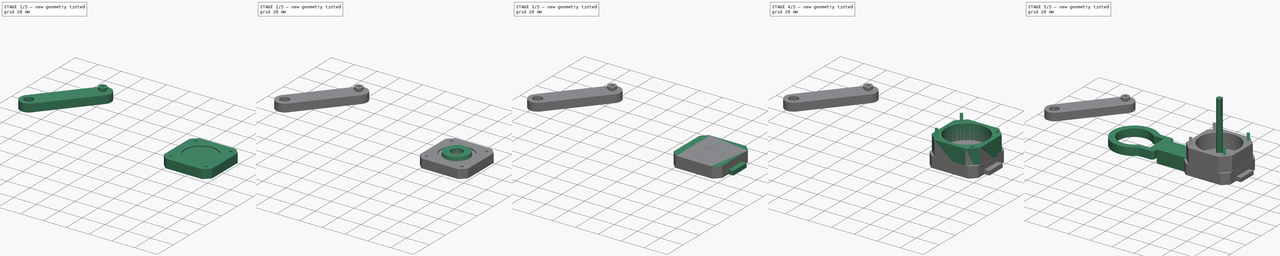
[diagram: build sequence overview — one tinted view per stage of 5, left to right]
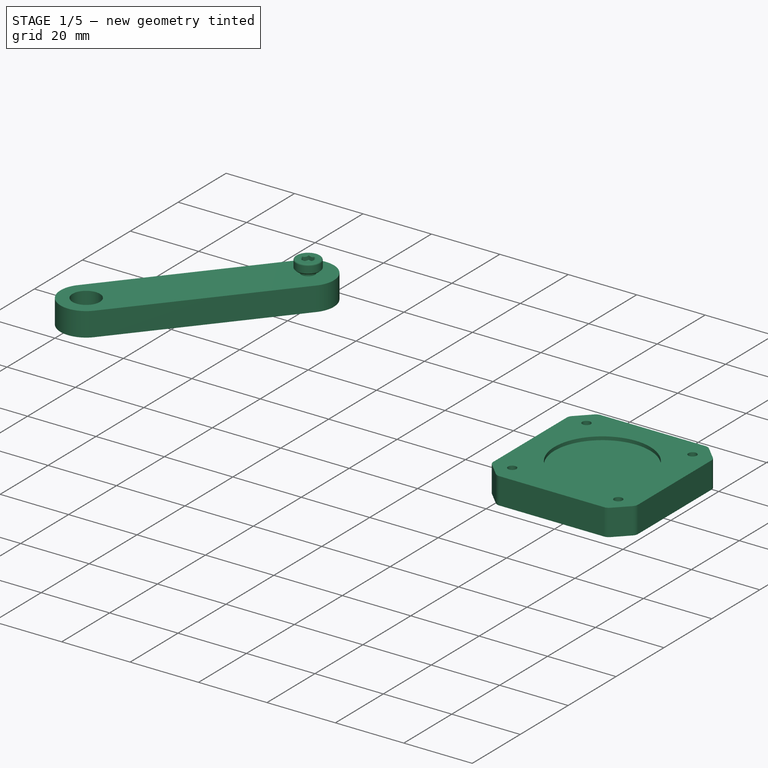
[diagram: stage 1 of 5 — iso view after this stage's code; geometry added in this stage tinted green]
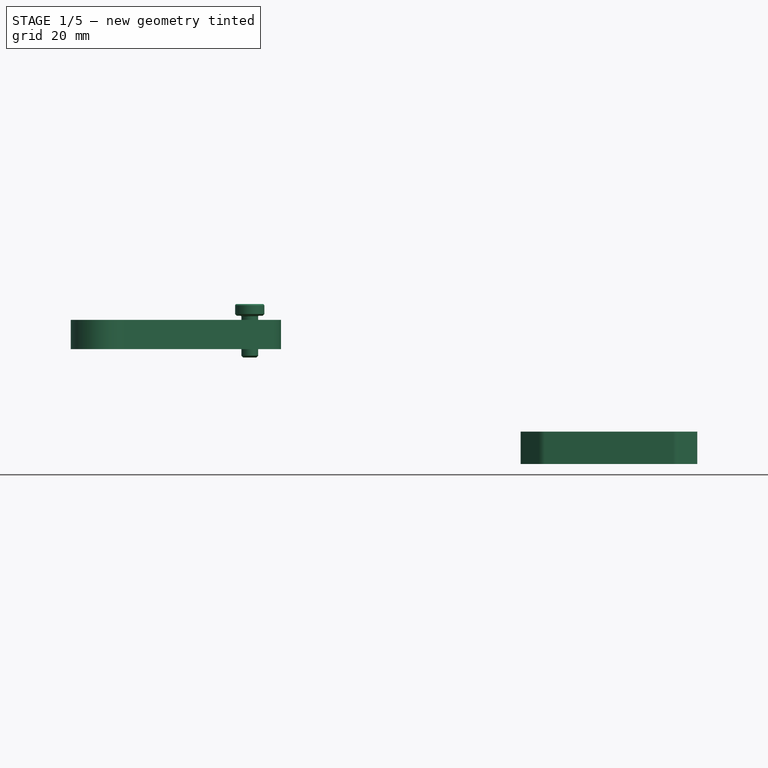
[diagram: stage 1 of 5 — front view after this stage's code; geometry added in this stage tinted green]
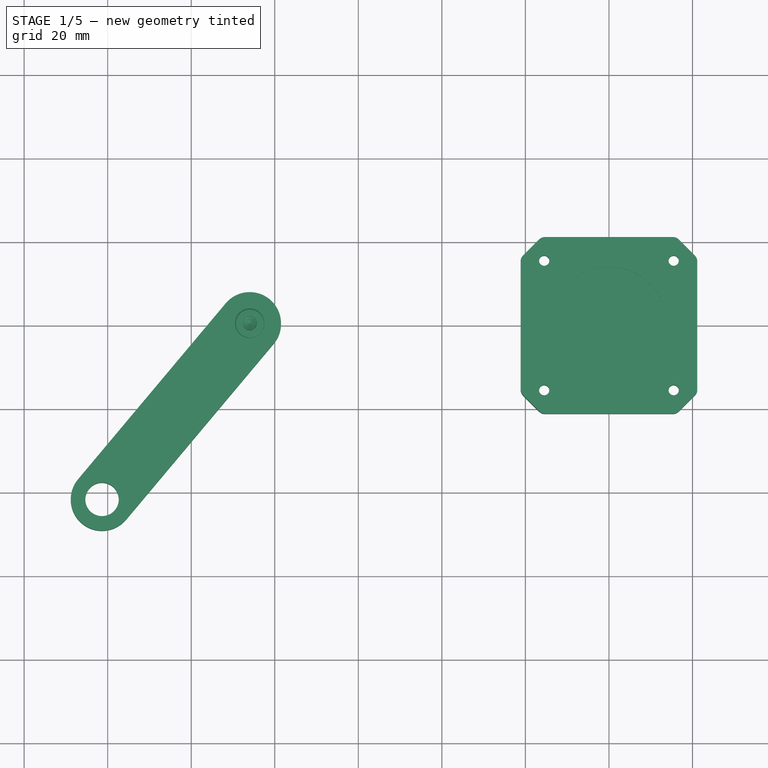
[diagram: stage 1 of 5 — top view after this stage's code; geometry added in this stage tinted green]
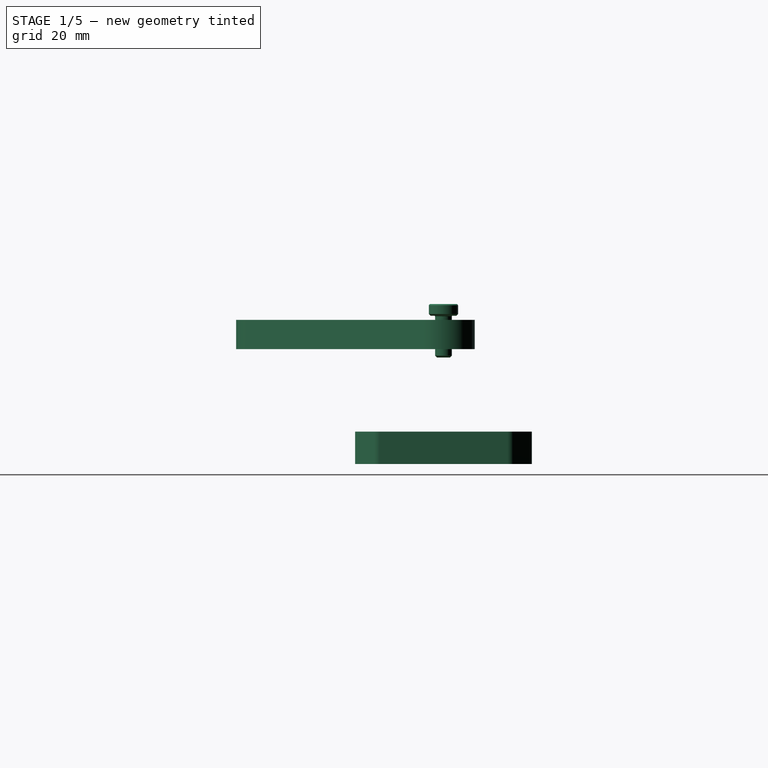
[diagram: stage 1 of 5 — right view after this stage's code; geometry added in this stage tinted green]
FCSTD DOCUMENT  (FreeCAD 0.19R24291 (Git))
Label: robotic-arm
License: All rights reserved
LicenseURL: http://en.wikipedia.org/wiki/All_rights_reserved
objects: Sketcher::SketchObject×26, PartDesign::Pocket×13, PartDesign::Pad×12, App::Part×10, PartDesign::Body×9, Part::FeaturePython×5, PartDesign::Chamfer×4, Part::Feature×2, PartDesign::Fillet×2, PartDesign::Draft×1, PartDesign::Hole×1, PartDesign::LinearPattern×1, Spreadsheet::Sheet×1
note: 109 computed .brp shape members not serialized (recipe doc carries the construction recipe); baked Part::Feature solids carry a one-line shape summary decoded from their .brp

FEATURE [Sketcher::SketchObject] Sketch006
  FullyConstrained = false
  MapMode = 5
  Support = -> [XY_Plane007]
  sketch-geometry (4):
    g0: LineSegment StartX=-21.15 StartY=21.15 StartZ=0 EndX=21.15 EndY=21.15 EndZ=0
    g1: LineSegment StartX=21.15 StartY=21.15 StartZ=0 EndX=21.15 EndY=-21.15 EndZ=0
    g2: LineSegment StartX=21.15 StartY=-21.15 StartZ=0 EndX=-21.15 EndY=-21.15 EndZ=0
    g3: LineSegment StartX=-21.15 StartY=-21.15 StartZ=0 EndX=-21.15 EndY=21.15 EndZ=0
  constraints (11):
    c: Coincident(g0,g1)
    c: Coincident(g1,g2)
    c: Coincident(g2,g3)
    c: Coincident(g3,g0)
    c: Horizontal(g0)
    c: Horizontal(g2)
    c: Vertical(g1)
    c: Vertical(g3)
    c: Symmetric(g0,g1,g-1)
    c: DistanceX(g0,g0) = 42.3
    c: Equal(g0,g3)
FEATURE [PartDesign::Pad] Pad005
  AllowMultiFace = false
  Direction = (1,1,1)
  Length = 7.75
  Length2 = 100
  Profile = -> Sketch006
  Refine = true
  Type = 0
FEATURE [PartDesign::Chamfer] Chamfer002
  Angle = 45
  Base = -> Pad005 [Edge8,Edge5,Edge2,Edge1]
  BaseFeature = -> Pad005
  ChamferType = 0
  FlipDirection = false
  Size = 5
  Size2 = 1
  SupportTransform = false
FEATURE [PartDesign::Fillet] Fillet001
  Base = -> Chamfer002 [Edge22,Edge24,Edge23,Edge21,Edge12,Edge2,Edge3,Edge14]
  BaseFeature = -> Chamfer002
  Radius = 2
  SupportTransform = false
FEATURE [PartDesign::Body] Body005  label="Rotor"
  Group = -> [Sketch010,Pad006,Sketch011,Pocket005,Chamfer003]
  Origin = -> Origin008
  Placement = pos=(0,0,2) rot=(0,0,1;0rad)
  Tip = -> Chamfer003
FEATURE [Sketcher::SketchObject] Sketch012
  FullyConstrained = false
  MapMode = 5
  Placement = pos=(0,0,22.75) rot=(0,0,1;0rad)
  Support = -> [Pocket001]
  sketch-geometry (1):
    g0: Circle CenterX=0 CenterY=0 CenterZ=0 NormalX=0 NormalY=0 NormalZ=1 AngleXU=0 Radius=18
  constraints (2):
    c: Coincident(g0,g-1)
    c: Radius(g0) = 18
FEATURE [Sketcher::SketchObject] Sketch013
  FullyConstrained = false
  MapMode = 5
  Placement = pos=(0,0,7.75) rot=(0,0,1;0rad)
  Support = -> [Fillet001]
  sketch-geometry (8):
    g0: LineSegment StartX=-15.5 StartY=15.5 StartZ=0 EndX=15.5 EndY=15.5 EndZ=0
    g1: LineSegment StartX=15.5 StartY=15.5 StartZ=0 EndX=15.5 EndY=-15.5 EndZ=0
    g2: LineSegment StartX=15.5 StartY=-15.5 StartZ=0 EndX=-15.5 EndY=-15.5 EndZ=0
    g3: LineSegment StartX=-15.5 StartY=-15.5 StartZ=0 EndX=-15.5 EndY=15.5 EndZ=0
    g4: Circle CenterX=-15.5 CenterY=15.5 CenterZ=0 NormalX=0 NormalY=0 NormalZ=1 AngleXU=0 Radius=1.225
    g5: Circle CenterX=15.5 CenterY=15.5 CenterZ=0 NormalX=0 NormalY=0 NormalZ=1 AngleXU=0 Radius=1.225
    g6: Circle CenterX=15.5 CenterY=-15.5 CenterZ=0 NormalX=0 NormalY=0 NormalZ=1 AngleXU=0 Radius=1.225
    g7: Circle CenterX=-15.5 CenterY=-15.5 CenterZ=0 NormalX=0 NormalY=0 NormalZ=1 AngleXU=0 Radius=1.225
  constraints (19):
    c: Coincident(g0,g1)
    c: Coincident(g1,g2)
    c: Coincident(g2,g3)
    c: Coincident(g3,g0)
    c: Horizontal(g0)
    c: Horizontal(g2)
    c: Vertical(g1)
    c: Vertical(g3)
    c: Equal(g0,g3)
    c: Symmetric(g0,g1,g-1)
    c: DistanceX(g0,g0) = 31
    c: Coincident(g4,g0)
    c: Coincident(g7,g2)
    c: Coincident(g0,g5)
    c: Coincident(g1,g6)
    c: Equal(g7,g4)
    c: Equal(g4,g5)
    c: Equal(g5,g6)
    c: Radius(g4) = 1.225
FEATURE [PartDesign::Pocket] Pocket002
  AllowMultiFace = false
  BaseFeature = -> Fillet001
  Length = 5
  Length2 = 100
  Profile = -> Sketch013
  Refine = true
  Type = 1
FEATURE [Sketcher::SketchObject] Sketch014
  FullyConstrained = false
  MapMode = 5
  Placement = pos=(0,0,7.75) rot=(0,0,1;0rad)
  Support = -> [Pocket002]
  sketch-geometry (1):
    g0: Circle CenterX=0 CenterY=0 CenterZ=0 NormalX=0 NormalY=0 NormalZ=1 AngleXU=0 Radius=14
  constraints (2):
    c: Coincident(g0,g-1)
    c: Radius(g0) = 14
FEATURE [PartDesign::Pocket] Pocket003
  AllowMultiFace = false
  BaseFeature = -> Pocket002
  Length = 1
  Length2 = 100
  Profile = -> Sketch014
  Refine = true
  Type = 0
FEATURE [PartDesign::Body] Body004  label="Aluminum front001"
  Group = -> [Sketch006,Pad005,Chamfer002,Fillet001,Sketch013,Pocket002,Sketch014,Pocket003,Sketch015,Pad007,Draft,Sketch009,Pocket004,Sketch023,Pocket011]
  Origin = -> Origin007
  Placement = pos=(0,0,32.35) rot=(0,0,1;0rad)
  Tip = -> Pocket011
FEATURE [App::Part] Part005  label="Aluminum front"
  Group = -> [Body004]
  Origin = -> Origin011
FEATURE [App::Part] Part002  label="Nema 17"
  Group = -> [Part003,Part004,Part005,Part006,Part007,Part008]
  Origin = -> Origin004
  Placement = pos=(0,0,-50) rot=(0,0,1;3.14159rad)
FEATURE [Spreadsheet::Sheet] Spreadsheet
  cells = A1=variable; B1=value; A2=l1_arm_length; B2(l1_arm_length)=78; A3=l1_thicc; B3(l1_thicc)=7; A4=l2_thicc; B4(l2_thicc)==l1_thicc; A5=l2_arm_length; B5(l2_arm_length)=55; A6=l2_start_offset_from_origin; B6(l2_start_offset_from_origin)==l1_arm_length + 8; A7=l2_angle; B7(l2_angle)=130; A8=l2_offset_height; B8(l2_offset_height)==l1_thicc + 20.5
FEATURE [Sketcher::SketchObject] Sketch024
  AttachmentOffset = pos=(0,0,27.5) rot=(0,0,1;0rad)
  FullyConstrained = true
  MapMode = 5
  Placement = pos=(0,0,27.5) rot=(0,0,1;0rad)
  Support = -> [XY_Plane002]
  expr: Constraints[11] = Spreadsheet.l2_arm_length
  expr: .AttachmentOffset.Base.z = Spreadsheet.l2_offset_height
  expr: Constraints[12] = Spreadsheet.l2_angle
  expr: Constraints[1] = Spreadsheet.l2_start_offset_from_origin
  sketch-geometry (5):
    g0: GeomPoint X=-86 Y=0 Z=0
    g1: LineSegment StartX=-91.7453 StartY=4.82091 StartZ=0 EndX=-127.099 EndY=-37.3116 EndZ=0
    g2: LineSegment StartX=-80.2547 StartY=-4.82091 StartZ=0 EndX=-115.608 EndY=-46.9534 EndZ=0
    g3: ArcOfCircle CenterX=-86 CenterY=0 CenterZ=0 NormalX=0 NormalY=0 NormalZ=1 AngleXU=0 Radius=7.5 StartAngle=5.58505 EndAngle=8.72665
    g4: ArcOfCircle CenterX=-121.353 CenterY=-42.1324 CenterZ=0 NormalX=0 NormalY=0 NormalZ=1 AngleXU=0 Radius=7.5 StartAngle=2.44346 EndAngle=5.58505
  constraints (13):
    c: PointOnObject(g0,g-1)
    c: DistanceX(g0,g-1) = 86
    c: Equal(g1,g2)
    c: Parallel(g1,g2)
    c: Coincident(g3,g0)
    c: Tangent(g3,g2) = 1.5708
    c: Tangent(g3,g1) = -1.5708
    c: Diameter(g3) = 15
    c: Coincident(g4,g1)
    c: Coincident(g4,g2)
    c: Diameter(g4) = 15
    c: Distance(g4,g3) = 55
    c: Angle(g2,g-1) = 2.26893
FEATURE [PartDesign::Pad] Pad011
  Direction = (1,1,1)
  Length = 7
  Length2 = 100
  Profile = -> Sketch024
  Type = 0
  expr: Length = Spreadsheet.l2_thicc
FEATURE [Sketcher::SketchObject] Sketch025
  AttachmentOffset = pos=(0,0,27.5) rot=(0,0,1;0rad)
  FullyConstrained = true
  MapMode = 5
  Placement = pos=(0,0,27.5) rot=(0,0,1;0rad)
  Support = -> [XY_Plane002]
  expr: .AttachmentOffset.Base.z = Spreadsheet.l2_offset_height
  expr: Constraints[7] = Spreadsheet.l2_angle
  expr: Constraints[4] = Spreadsheet.l2_arm_length
  expr: Constraints[1] = Spreadsheet.l2_start_offset_from_origin
  sketch-geometry (5):
    g0: GeomPoint X=-86 Y=0 Z=0
    g1: Circle CenterX=-86 CenterY=0 CenterZ=0 NormalX=0 NormalY=0 NormalZ=1 AngleXU=0 Radius=2
    g2: GeomPoint X=-121.353 Y=-42.1324 Z=0
    g3: LineSegment StartX=-86 StartY=0 StartZ=0 EndX=-121.353 EndY=-42.1324 EndZ=0
    g4: Circle CenterX=-121.353 CenterY=-42.1324 CenterZ=0 NormalX=0 NormalY=0 NormalZ=1 AngleXU=0 Radius=4
  constraints (10):
    c: PointOnObject(g0,g-1)
    c: DistanceX(g0,g-1) = 86
    c: Coincident(g1,g0)
    c: Diameter(g1) = 4
    c: Distance(g2,g1) = 55
    c: Coincident(g3,g1)
    c: Coincident(g3,g2)
    c: Angle(g3,g-1) = 2.26893
    c: Coincident(g4,g2)
    c: Diameter(g4) = 8
FEATURE [PartDesign::Pocket] Pocket012
  BaseFeature = -> Pad011
  Length = 5
  Length2 = 100
  Profile = -> Sketch025
  Reversed = true
  Type = 1
FEATURE [PartDesign::Body] Body001  label="l2"
  Group = -> [Sketch024,Pad011,Sketch025,Pocket012]
  Origin = -> Origin002
  Tip = -> Pocket012
FEATURE [App::Part] Part  label="arm-body"
  Group = -> [Body,Body001]
  Origin = -> Origin
FEATURE [Part::Feature] Part__Feature  label="motor-hex-coupler-hub-6mm"
  Placement = pos=(-86,0,27) rot=(0,1,0;3.14159rad)
  shape: bbox 14 x 12.12 x 18.5 mm, 21 faces (baked)
FEATURE [App::Part] Part009  label="28BYJ-48_coupler"
  Group = -> [Part__Feature]
  Origin = -> Origin018
FEATURE [Part::FeaturePython] Screw004  label="M4x10-Screw"  # Fasteners workbench fastener (typed FeaturePython)
  Placement = pos=(-86,0,35.5) rot=(0,0,1;0rad)
  diameter = 1
  invert = false
  length = 0
  lengthCustom = 10
  matchOuter = false
  offset = 0
  thread = false
  type = 13
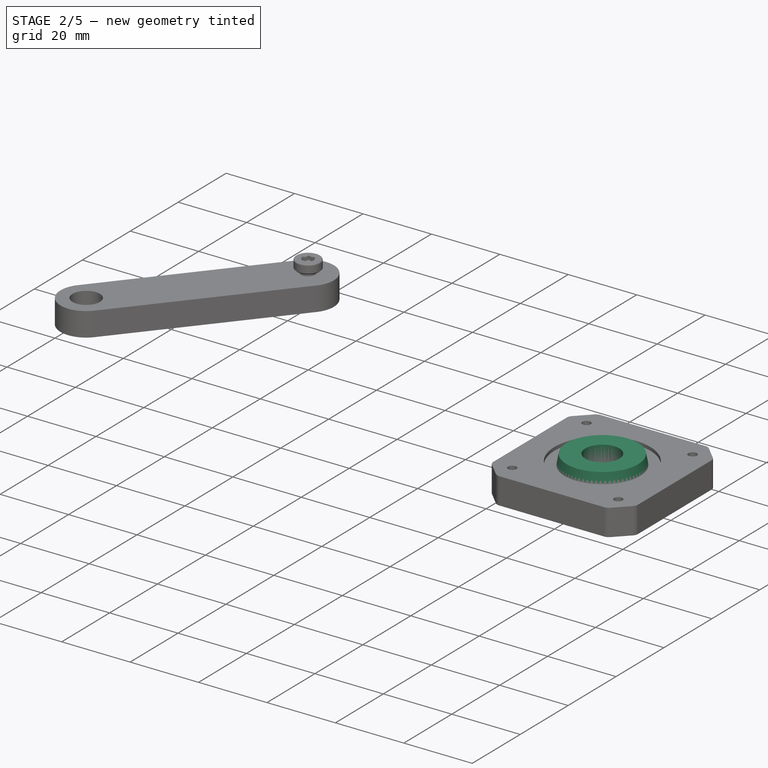
[diagram: stage 2 of 5 — iso view after this stage's code; geometry added in this stage tinted green]
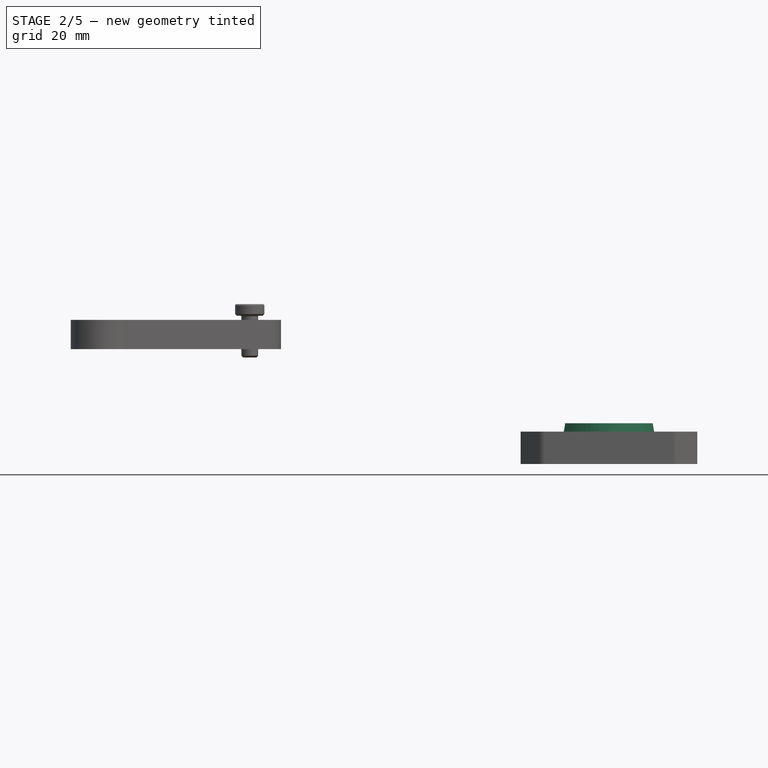
[diagram: stage 2 of 5 — front view after this stage's code; geometry added in this stage tinted green]
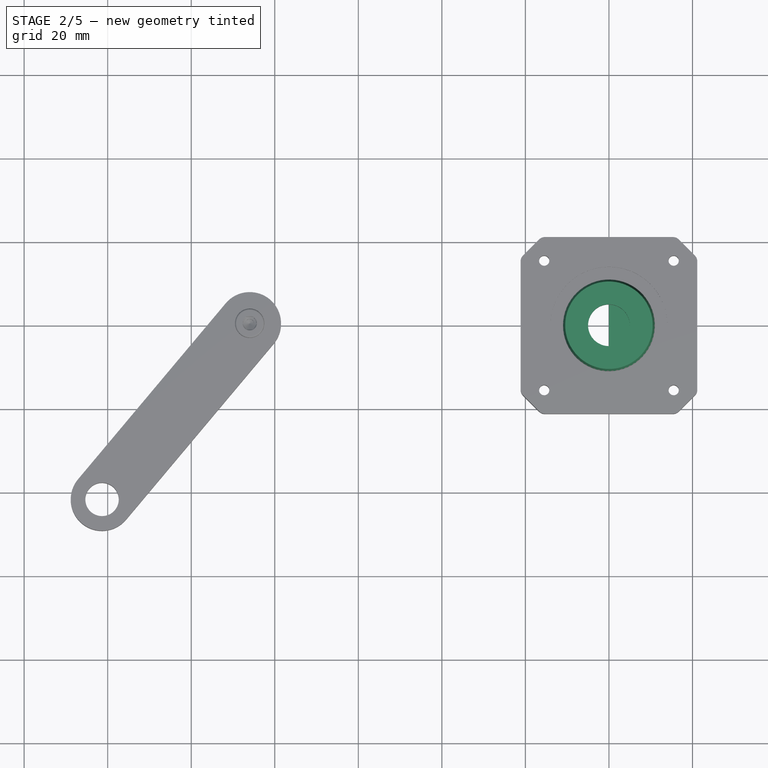
[diagram: stage 2 of 5 — top view after this stage's code; geometry added in this stage tinted green]
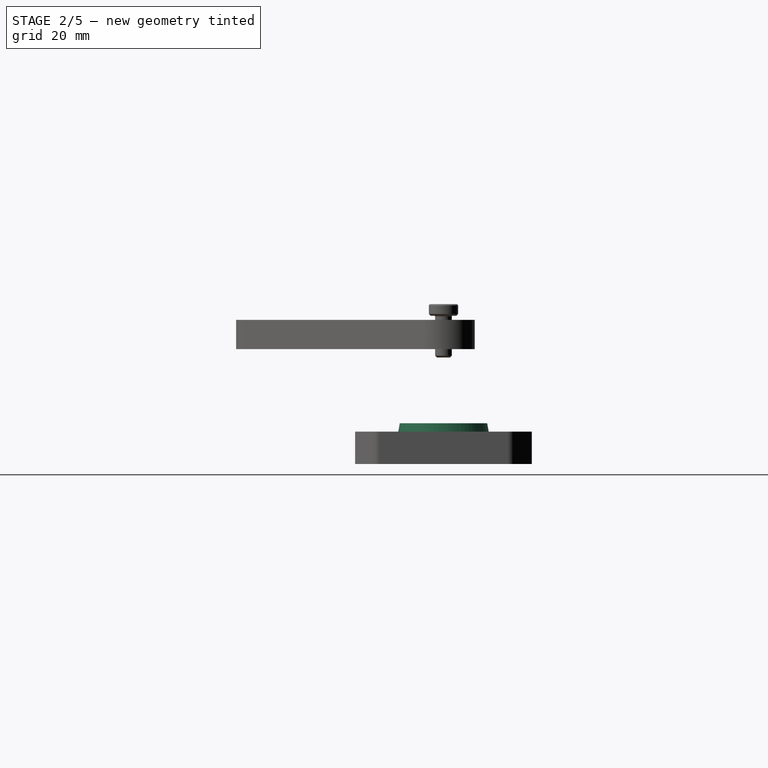
[diagram: stage 2 of 5 — right view after this stage's code; geometry added in this stage tinted green]
FEATURE [Sketcher::SketchObject] Sketch015
  FullyConstrained = false
  MapMode = 5
  Placement = pos=(0,0,6.75) rot=(0,0,1;0rad)
  Support = -> [Pocket003]
  sketch-geometry (1):
    g0: Circle CenterX=0 CenterY=0 CenterZ=0 NormalX=0 NormalY=0 NormalZ=1 AngleXU=0 Radius=11
  constraints (2):
    c: Coincident(g0,g-1)
    c: Radius(g0) = 11
FEATURE [PartDesign::Pad] Pad007
  AllowMultiFace = false
  BaseFeature = -> Pocket003
  Direction = (1,1,1)
  Length = 3
  Length2 = 100
  Profile = -> Sketch015
  Refine = true
  Type = 0
FEATURE [PartDesign::Draft] Draft
  Angle = 10
  Base = -> Pad007 [Face25]
  BaseFeature = -> Pad007
  NeutralPlane = -> Pad007 [Face24]
  SupportTransform = false
FEATURE [Sketcher::SketchObject] Sketch009
  FullyConstrained = false
  MapMode = 5
  Placement = pos=(0,0,9.75) rot=(0,0,1;0rad)
  Support = -> [Draft]
  sketch-geometry (1):
    g0: Circle CenterX=0 CenterY=0 CenterZ=0 NormalX=0 NormalY=0 NormalZ=1 AngleXU=0 Radius=5
  constraints (2):
    c: Coincident(g0,g-1)
    c: Radius(g0) = 5
FEATURE [PartDesign::Pocket] Pocket004
  AllowMultiFace = false
  BaseFeature = -> Draft
  Length = 8
  Length2 = 100
  Profile = -> Sketch009
  Refine = true
  Type = 1
FEATURE [PartDesign::Body] Body002  label="Aluminium rear001"
  Group = -> [Sketch003,Pad002,Sketch004,Pad003,Chamfer,Fillet,Sketch007,Hole,Sketch016,Pocket007]
  Origin = -> Origin005
  Tip = -> Pocket007
FEATURE [App::Part] Part003  label="Aluminium rear"
  Group = -> [Body002]
  Origin = -> Origin009
FEATURE [Sketcher::SketchObject] Sketch017
  FullyConstrained = false
  MapMode = 5
  Placement = pos=(0,0,0) rot=(0.57735,0.57735,0.57735;2.0944rad)
  Support = -> [YZ_Plane016]
  sketch-geometry (4):
    g0: LineSegment StartX=-7.5 StartY=0 StartZ=0 EndX=7.5 EndY=0 EndZ=0
    g1: LineSegment StartX=7.5 StartY=0 StartZ=0 EndX=7.5 EndY=5 EndZ=0
    g2: LineSegment StartX=7.5 StartY=5 StartZ=0 EndX=-7.5 EndY=5 EndZ=0
    g3: LineSegment StartX=-7.5 StartY=5 StartZ=0 EndX=-7.5 EndY=0 EndZ=0
  constraints (11):
    c: Coincident(g0,g1)
    c: Coincident(g1,g2)
    c: Coincident(g2,g3)
    c: Coincident(g3,g0)
    c: Horizontal(g0)
    c: Horizontal(g2)
    c: Vertical(g1)
    c: Vertical(g3)
    c: Symmetric(g0,g0,g-1)
    c: DistanceX(g0,g0) = 15
    c: DistanceY(g3,g3) = 5
FEATURE [PartDesign::Pad] Pad008
  AllowMultiFace = false
  Direction = (1,1,1)
  Length = 10
  Length2 = 100
  Placement = pos=(0,0,0) rot=(0.57735,0.57735,0.57735;2.0944rad)
  Profile = -> Sketch017
  Refine = true
  Type = 0
FEATURE [PartDesign::Body] Body007  label="conector"
  Group = -> [Sketch017,Pad008,Sketch018,Pocket008,Sketch019,Pocket009,Sketch020,Pocket010]
  Origin = -> Origin016
  Tip = -> Pocket010
FEATURE [Sketcher::SketchObject] Sketch021
  FullyConstrained = false
  MapMode = 5
  Placement = pos=(0,0,0) rot=(0.57735,0.57735,0.57735;2.0944rad)
  Support = -> [YZ_Plane017]
  sketch-geometry (4):
    g0: LineSegment StartX=-5.5 StartY=1 StartZ=0 EndX=5.5 EndY=1 EndZ=0
    g1: LineSegment StartX=5.5 StartY=1 StartZ=0 EndX=5.5 EndY=0 EndZ=0
    g2: LineSegment StartX=5.5 StartY=0 StartZ=0 EndX=-5.5 EndY=0 EndZ=0
    g3: LineSegment StartX=-5.5 StartY=0 StartZ=0 EndX=-5.5 EndY=1 EndZ=0
  constraints (11):
    c: Coincident(g0,g1)
    c: Coincident(g1,g2)
    c: Coincident(g2,g3)
    c: Coincident(g3,g0)
    c: Horizontal(g0)
    c: Vertical(g1)
    c: Vertical(g3)
    c: PointOnObject(g1,g-1)
    c: DistanceY(g3,g3) = 1
    c: DistanceX(g2,g2) = 11
    c: Symmetric(g1,g2,g-2)
FEATURE [PartDesign::Pad] Pad009
  AllowMultiFace = false
  Direction = (1,1,1)
  Length = 1
  Length2 = 100
  Placement = pos=(0,0,0) rot=(0.57735,0.57735,0.57735;2.0944rad)
  Profile = -> Sketch021
  Refine = true
  Type = 0
FEATURE [Sketcher::SketchObject] Sketch022
  ExternalGeometry = -> [Pad009]
  FullyConstrained = false
  MapMode = 5
  Placement = pos=(-3e-16,4e-16,1) rot=(0,0,-1;1.5708rad)
  Support = -> [Pad009]
  sketch-geometry (7):
    g0: LineSegment StartX=-5.5 StartY=1 StartZ=0 EndX=-4.5 EndY=1 EndZ=0
    g1: LineSegment StartX=-4.5 StartY=1 StartZ=0 EndX=-4.5 EndY=8 EndZ=0
    g2: LineSegment StartX=-4.5 StartY=8 StartZ=0 EndX=-5.5 EndY=8 EndZ=0
    g3: LineSegment StartX=-5.5 StartY=8 StartZ=0 EndX=-5.5 EndY=1 EndZ=0
    g4: LineSegment StartX=-5.5 StartY=8 StartZ=0 EndX=-5.25 EndY=8.7 EndZ=0
    g5: LineSegment StartX=-5.25 StartY=8.7 StartZ=0 EndX=-4.75 EndY=8.7 EndZ=0
    g6: LineSegment StartX=-4.75 StartY=8.7 StartZ=0 EndX=-4.5 EndY=8 EndZ=0
  constraints (19):
    c: Coincident(g0,g1)
    c: Coincident(g1,g2)
    c: Coincident(g2,g3)
    c: Coincident(g3,g0)
    c: Horizontal(g0)
    c: Horizontal(g2)
    c: Vertical(g1)
    c: Vertical(g3)
    c: Coincident(g0,g-3)
    c: Coincident(g2,g4)
    c: Coincident(g4,g5)
    c: Horizontal(g5)
    c: Coincident(g5,g6)
    c: Coincident(g6,g1)
    c: DistanceY(g1,g5) = 0.7
    c: DistanceX(g5,g5) = 0.5
    c: Equal(g6,g4)
    c: DistanceX(g0,g0) = 1
    c: DistanceY(g3,g3) = 7
FEATURE [PartDesign::Pad] Pad010
  AllowMultiFace = false
  BaseFeature = -> Pad009
  Direction = (1,1,1)
  Length = 1
  Length2 = 100
  Placement = pos=(0,0,0) rot=(0.57735,0.57735,0.57735;2.0944rad)
  Profile = -> Sketch022
  Refine = true
  Reversed = true
  Type = 0
FEATURE [PartDesign::LinearPattern] LinearPattern
  BaseFeature = -> Pad010
  Direction = -> Pad010 [Edge10]
  Length = 10
  Occurrences = 6
  Originals = -> [Pad010]
  Placement = pos=(0,0,0) rot=(0.57735,0.57735,0.57735;2.0944rad)
  Refine = true
  Reversed = true
FEATURE [PartDesign::Body] Body008  label="pin"
  Group = -> [Sketch021,Pad009,Sketch022,Pad010,LinearPattern]
  Origin = -> Origin017
  Placement = pos=(0,0,2) rot=(0,0,1;0rad)
  Tip = -> LinearPattern
FEATURE [App::Part] Part008  label="Conector"
  Group = -> [Body007,Body008]
  Origin = -> Origin015
  Placement = pos=(17,0,4) rot=(0,0,1;0rad)
FEATURE [Sketcher::SketchObject] Sketch023
  FullyConstrained = false
  MapMode = 5
  Placement = pos=(0,0,0) rot=(1,0,0;3.14159rad)
  Support = -> [Pocket004]
  sketch-geometry (1):
    g0: Circle CenterX=0 CenterY=0 CenterZ=0 NormalX=0 NormalY=0 NormalZ=1 AngleXU=0 Radius=15.35
  constraints (2):
    c: Coincident(g0,g-1)
    c: Radius(g0) = 15.35
FEATURE [PartDesign::Pocket] Pocket011
  AllowMultiFace = false
  BaseFeature = -> Pocket004
  Length = 5
  Length2 = 100
  Profile = -> Sketch023
  Refine = true
  Type = 0
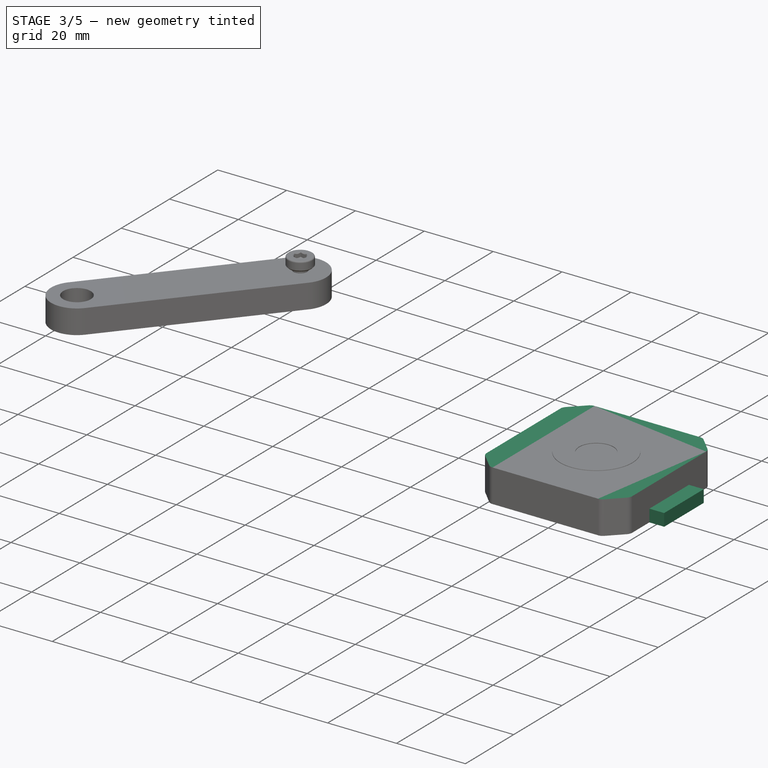
[diagram: stage 3 of 5 — iso view after this stage's code; geometry added in this stage tinted green]
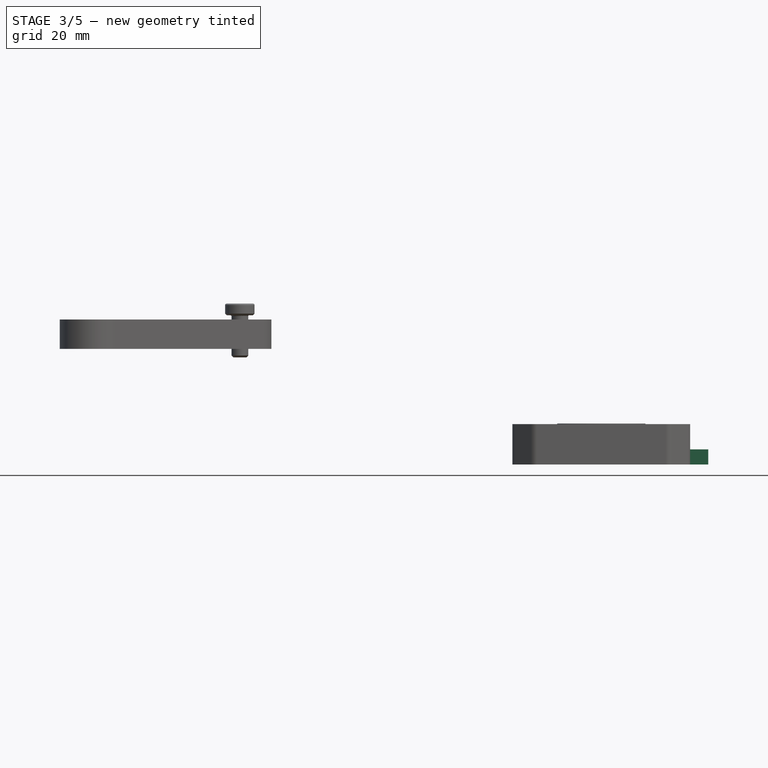
[diagram: stage 3 of 5 — front view after this stage's code; geometry added in this stage tinted green]
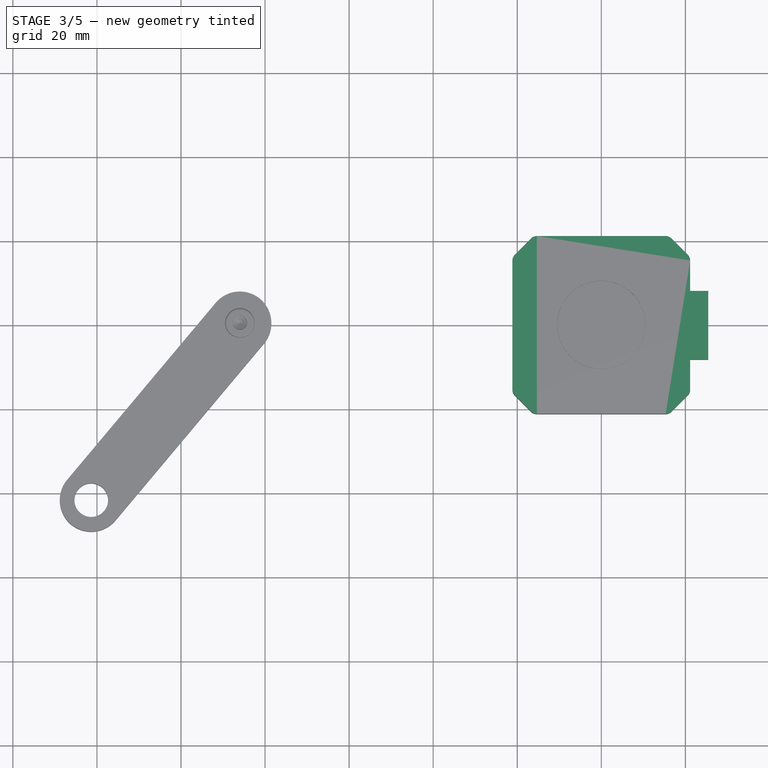
[diagram: stage 3 of 5 — top view after this stage's code; geometry added in this stage tinted green]
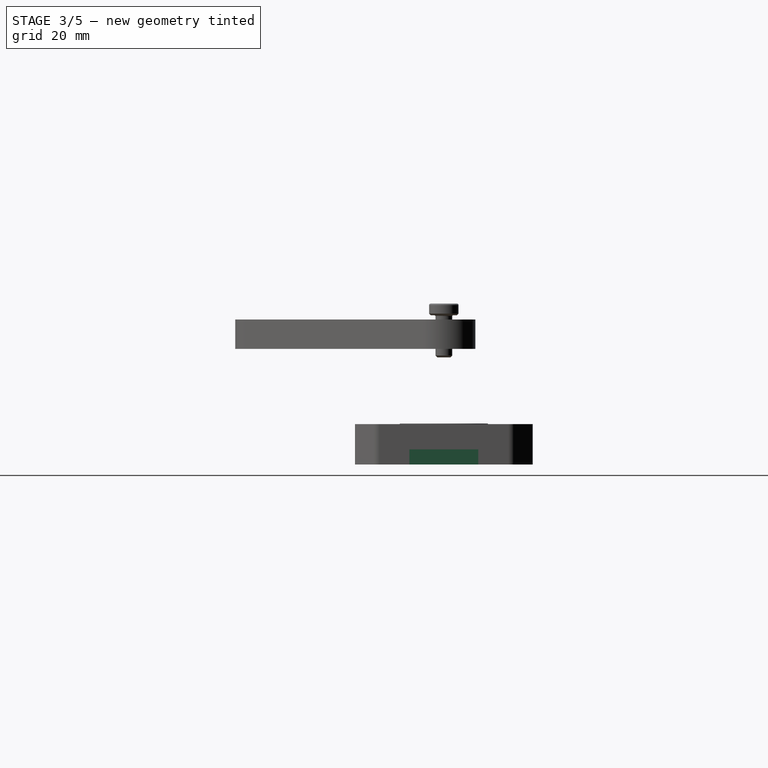
[diagram: stage 3 of 5 — right view after this stage's code; geometry added in this stage tinted green]
FEATURE [PartDesign::Body] Body  label="l1"
  Group = -> [Sketch,Pad,Sketch001,Pad001,Sketch002,Pocket]
  Origin = -> Origin001
  Tip = -> Pocket
FEATURE [Sketcher::SketchObject] Sketch003
  FullyConstrained = false
  MapMode = 5
  Support = -> [XY_Plane005]
  sketch-geometry (4):
    g0: LineSegment StartX=-21.15 StartY=21.15 StartZ=0 EndX=21.15 EndY=21.15 EndZ=0
    g1: LineSegment StartX=21.15 StartY=21.15 StartZ=0 EndX=21.15 EndY=-21.15 EndZ=0
    g2: LineSegment StartX=21.15 StartY=-21.15 StartZ=0 EndX=-21.15 EndY=-21.15 EndZ=0
    g3: LineSegment StartX=-21.15 StartY=-21.15 StartZ=0 EndX=-21.15 EndY=21.15 EndZ=0
  constraints (11):
    c: Coincident(g0,g1)
    c: Coincident(g1,g2)
    c: Coincident(g2,g3)
    c: Coincident(g3,g0)
    c: Horizontal(g0)
    c: Horizontal(g2)
    c: Vertical(g1)
    c: Vertical(g3)
    c: Symmetric(g0,g1,g-1)
    c: DistanceX(g0,g0) = 42.3
    c: Equal(g0,g3)
FEATURE [PartDesign::Pad] Pad002
  AllowMultiFace = false
  Direction = (1,1,1)
  Length = 9.6
  Length2 = 100
  Profile = -> Sketch003
  Refine = true
  Type = 0
FEATURE [Sketcher::SketchObject] Sketch004
  ExternalGeometry = -> [Pad002]
  FullyConstrained = false
  MapMode = 5
  Support = -> [XY_Plane005]
  sketch-geometry (4):
    g0: LineSegment StartX=21.15 StartY=8.2 StartZ=0 EndX=25.45 EndY=8.2 EndZ=0
    g1: LineSegment StartX=25.45 StartY=8.2 StartZ=0 EndX=25.45 EndY=-8.2 EndZ=0
    g2: LineSegment StartX=25.45 StartY=-8.2 StartZ=0 EndX=21.15 EndY=-8.2 EndZ=0
    g3: LineSegment StartX=21.15 StartY=-8.2 StartZ=0 EndX=21.15 EndY=8.2 EndZ=0
  constraints (11):
    c: Coincident(g0,g1)
    c: Coincident(g1,g2)
    c: Coincident(g2,g3)
    c: Coincident(g3,g0)
    c: Horizontal(g0)
    c: Horizontal(g2)
    c: Vertical(g3)
    c: PointOnObject(g0,g-3)
    c: Symmetric(g1,g0,g-1)
    c: DistanceX(g0,g0) = 4.3
    c: DistanceY(g1,g1) = 16.4
FEATURE [PartDesign::Pad] Pad003
  AllowMultiFace = false
  BaseFeature = -> Pad002
  Direction = (1,1,1)
  Length = 3.6
  Length2 = 100
  Profile = -> Sketch004
  Refine = true
  Type = 0
FEATURE [PartDesign::Chamfer] Chamfer
  Angle = 45
  Base = -> Pad003 [Edge13,Edge5,Edge1,Edge2]
  BaseFeature = -> Pad003
  ChamferType = 0
  FlipDirection = false
  Size = 5
  Size2 = 1
  SupportTransform = false
FEATURE [PartDesign::Fillet] Fillet
  Base = -> Chamfer [Edge33,Edge28,Edge18,Edge3,Edge2,Edge16,Edge30,Edge25]
  BaseFeature = -> Chamfer
  Radius = 2
  SupportTransform = false
FEATURE [Sketcher::SketchObject] Sketch018
  ExternalGeometry = -> [Pad008]
  FullyConstrained = false
  MapMode = 5
  Placement = pos=(10,-2.2e-15,2.2e-15) rot=(0.57735,0.57735,0.57735;2.0944rad)
  Support = -> [Pad008]
  sketch-geometry (8):
    g0: LineSegment StartX=-6.5 StartY=4 StartZ=0 EndX=6.5 EndY=4 EndZ=0
    g1: LineSegment StartX=6.5 StartY=4 StartZ=0 EndX=6.5 EndY=1 EndZ=0
    g2: LineSegment StartX=6.5 StartY=1 StartZ=0 EndX=-6.5 EndY=1 EndZ=0
    g3: LineSegment StartX=-6.5 StartY=1 StartZ=0 EndX=-6.5 EndY=4 EndZ=0
    g4: LineSegment StartX=-6.5 StartY=1 StartZ=0 EndX=-7.5 EndY=1 EndZ=0
    g5: LineSegment StartX=-6.5 StartY=1 StartZ=0 EndX=-6.5 EndY=0 EndZ=0
    g6: LineSegment StartX=6.5 StartY=4 StartZ=0 EndX=6.5 EndY=5 EndZ=0
    g7: LineSegment StartX=6.5 StartY=4 StartZ=0 EndX=7.5 EndY=4 EndZ=0
  constraints (23):
    c: Coincident(g0,g1)
    c: Coincident(g1,g2)
    c: Coincident(g2,g3)
    c: Coincident(g3,g0)
    c: Horizontal(g2)
    c: Vertical(g1)
    c: Vertical(g3)
    c: Symmetric(g0,g0,g-2)
    c: Coincident(g4,g2)
    c: PointOnObject(g4,g-4)
    c: Horizontal(g4)
    c: PointOnObject(g5,g-1)
    c: Vertical(g5)
    c: Coincident(g6,g0)
    c: Coincident(g7,g0)
    c: Horizontal(g7)
    c: Vertical(g6)
    c: PointOnObject(g6,g-5)
    c: Equal(g7,g6)
    c: Equal(g6,g4)
    c: Equal(g4,g5)
    c: DistanceX(g4,g4) = 1
    c: Coincident(g5,g2)
FEATURE [PartDesign::Pocket] Pocket008
  AllowMultiFace = false
  BaseFeature = -> Pad008
  Length = 6
  Length2 = 100
  Placement = pos=(0,0,0) rot=(0.57735,0.57735,0.57735;2.0944rad)
  Profile = -> Sketch018
  Refine = true
  Type = 0
FEATURE [Sketcher::SketchObject] Sketch019
  ExternalGeometry = -> [Pocket008]
  FullyConstrained = false
  MapMode = 5
  Placement = pos=(10,-2.2e-15,2.2e-15) rot=(0.57735,0.57735,0.57735;2.0944rad)
  Support = -> [Pocket008]
  sketch-geometry (4):
    g0: LineSegment StartX=-4 StartY=5 StartZ=0 EndX=4 EndY=5 EndZ=0
    g1: LineSegment StartX=4 StartY=5 StartZ=0 EndX=4 EndY=4 EndZ=0
    g2: LineSegment StartX=4 StartY=4 StartZ=0 EndX=-4 EndY=4 EndZ=0
    g3: LineSegment StartX=-4 StartY=4 StartZ=0 EndX=-4 EndY=5 EndZ=0
  constraints (11):
    c: Coincident(g0,g1)
    c: Coincident(g1,g2)
    c: Coincident(g2,g3)
    c: Coincident(g3,g0)
    c: Horizontal(g0)
    c: Vertical(g1)
    c: Vertical(g3)
    c: PointOnObject(g0,g-3)
    c: PointOnObject(g1,g-4)
    c: Symmetric(g1,g2,g-2)
    c: DistanceX(g0,g0) = 8
FEATURE [PartDesign::Pocket] Pocket009
  AllowMultiFace = false
  BaseFeature = -> Pocket008
  Length = 4.5
  Length2 = 100
  Placement = pos=(0,0,0) rot=(0.57735,0.57735,0.57735;2.0944rad)
  Profile = -> Sketch019
  Refine = true
  Type = 0
FEATURE [Sketcher::SketchObject] Sketch020
  ExternalGeometry = -> [Pocket009]
  FullyConstrained = false
  MapMode = 5
  Placement = pos=(-1.4e-15,2.2e-15,5) rot=(0,0,-1;1.5708rad)
  Support = -> [Pocket009]
  sketch-geometry (11):
    g0: LineSegment StartX=-6.49 StartY=8.99 StartZ=0 EndX=-5.01 EndY=8.99 EndZ=0
    g1: LineSegment StartX=-5.01 StartY=8.99 StartZ=0 EndX=-5.01 EndY=4.5 EndZ=0
    g2: LineSegment StartX=-5.01 StartY=4.5 StartZ=0 EndX=-6.49 EndY=4.5 EndZ=0
    g3: LineSegment StartX=-6.49 StartY=4.5 StartZ=0 EndX=-6.49 EndY=8.99 EndZ=0
    g4: LineSegment StartX=5.01 StartY=8.99 StartZ=0 EndX=6.49 EndY=8.99 EndZ=0
    g5: LineSegment StartX=6.49 StartY=8.99 StartZ=0 EndX=6.49 EndY=4.5 EndZ=0
    g6: LineSegment StartX=6.49 StartY=4.5 StartZ=0 EndX=5.01 EndY=4.5 EndZ=0
    g7: LineSegment StartX=5.01 StartY=4.5 StartZ=0 EndX=5.01 EndY=8.99 EndZ=0
    g8: LineSegment StartX=-7.5 StartY=8.99 StartZ=0 EndX=-6.49 EndY=8.99 EndZ=0
    g9: LineSegment StartX=-6.49 StartY=10 StartZ=0 EndX=-6.49 EndY=8.99 EndZ=0
    g10: LineSegment StartX=-5.01 StartY=8.99 StartZ=0 EndX=-4 EndY=8.99 EndZ=0
  constraints (32):
    c: Coincident(g0,g1)
    c: Coincident(g1,g2)
    c: Coincident(g2,g3)
    c: Coincident(g3,g0)
    c: Horizontal(g0)
    c: Horizontal(g2)
    c: Vertical(g1)
    c: Vertical(g3)
    c: Coincident(g4,g5)
    c: Coincident(g5,g6)
    c: Coincident(g6,g7)
    c: Coincident(g7,g4)
    c: Horizontal(g4)
    c: Horizontal(g6)
    c: Vertical(g5)
    c: Vertical(g7)
    c: DistanceX(g4,g4) = 1.48
    c: Equal(g0,g4)
    c: Equal(g7,g1)
    c: PointOnObject(g8,g-4)
    c: Coincident(g8,g0)
    c: Horizontal(g8)
    c: PointOnObject(g9,g-5)
    c: Coincident(g9,g0)
    c: Vertical(g9)
    c: Coincident(g10,g0)
    c: PointOnObject(g10,g-3)
    c: Horizontal(g10)
    c: Symmetric(g4,g0,g-2)
    c: Equal(g10,g9)
    c: Equal(g9,g8)
    c: DistanceY(g3,g3) = 4.49
FEATURE [PartDesign::Pocket] Pocket010
  AllowMultiFace = false
  BaseFeature = -> Pocket009
  Length = 2
  Length2 = 100
  Placement = pos=(0,0,0) rot=(0.57735,0.57735,0.57735;2.0944rad)
  Profile = -> Sketch020
  Refine = true
  Type = 0
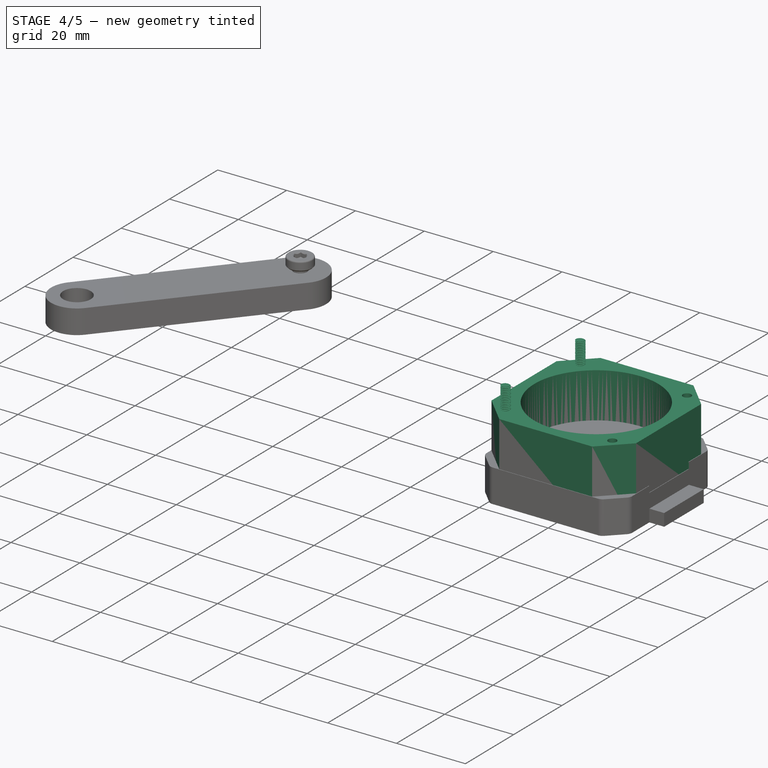
[diagram: stage 4 of 5 — iso view after this stage's code; geometry added in this stage tinted green]
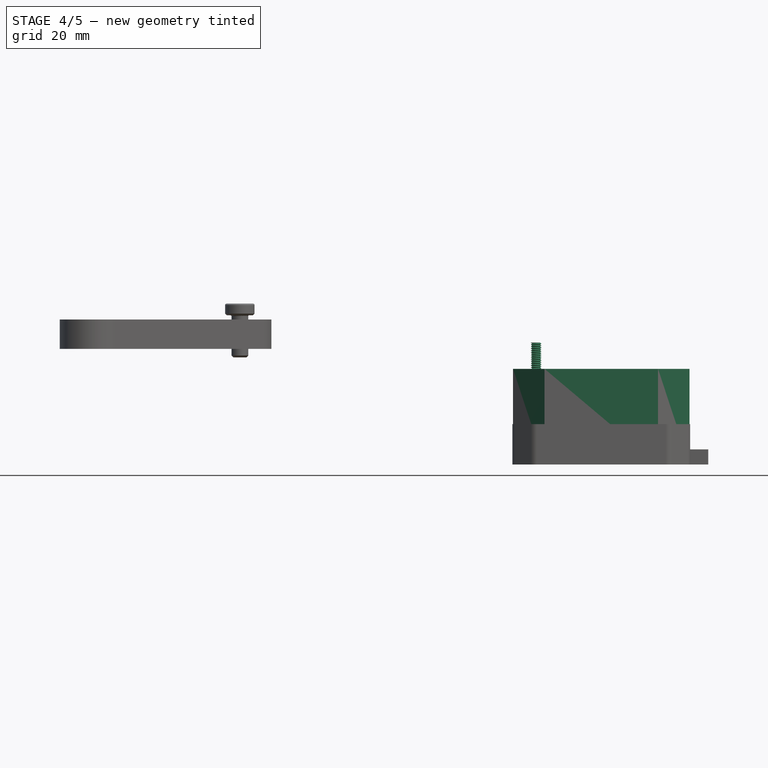
[diagram: stage 4 of 5 — front view after this stage's code; geometry added in this stage tinted green]
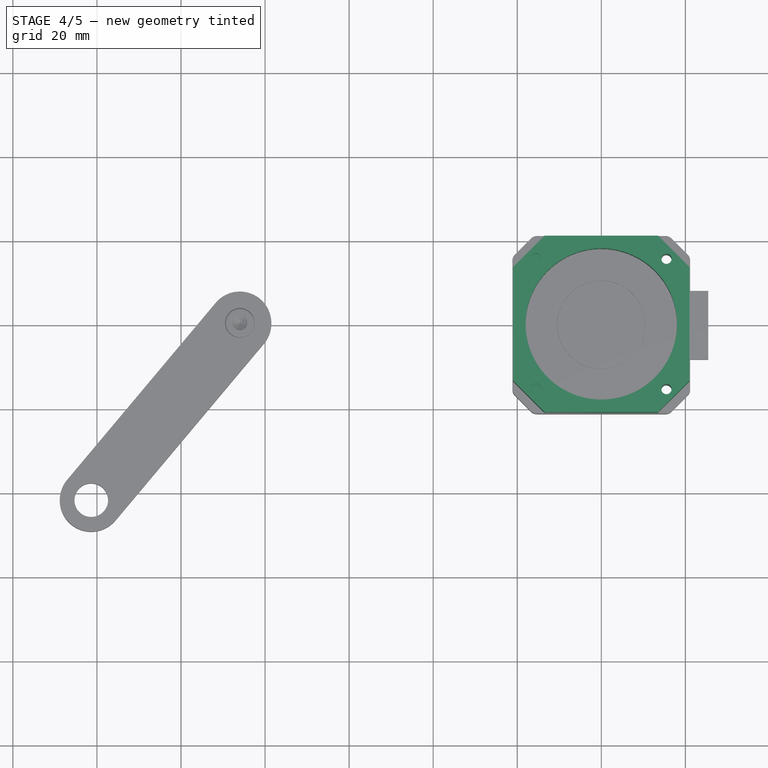
[diagram: stage 4 of 5 — top view after this stage's code; geometry added in this stage tinted green]
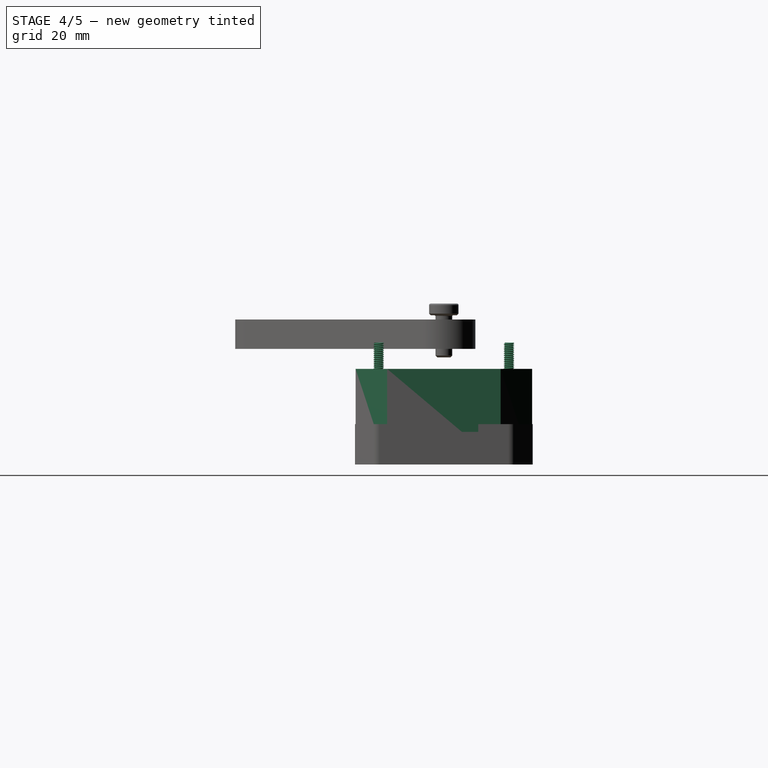
[diagram: stage 4 of 5 — right view after this stage's code; geometry added in this stage tinted green]
FEATURE [Sketcher::SketchObject] Sketch005
  FullyConstrained = false
  MapMode = 5
  Support = -> [XY_Plane006]
  sketch-geometry (4):
    g0: LineSegment StartX=-21 StartY=21 StartZ=0 EndX=21 EndY=21 EndZ=0
    g1: LineSegment StartX=21 StartY=21 StartZ=0 EndX=21 EndY=-21 EndZ=0
    g2: LineSegment StartX=21 StartY=-21 StartZ=0 EndX=-21 EndY=-21 EndZ=0
    g3: LineSegment StartX=-21 StartY=-21 StartZ=0 EndX=-21 EndY=21 EndZ=0
  constraints (11):
    c: Coincident(g0,g1)
    c: Coincident(g1,g2)
    c: Coincident(g2,g3)
    c: Coincident(g3,g0)
    c: Horizontal(g0)
    c: Horizontal(g2)
    c: Vertical(g1)
    c: Vertical(g3)
    c: DistanceX(g0,g0) = 42
    c: Symmetric(g0,g1,g-1)
    c: Equal(g0,g3)
FEATURE [PartDesign::Pad] Pad004
  AllowMultiFace = false
  Direction = (1,1,1)
  Length = 22.75
  Length2 = 100
  Profile = -> Sketch005
  Refine = true
  Type = 0
FEATURE [PartDesign::Chamfer] Chamfer001
  Angle = 45
  Base = -> Pad004 [Edge8,Edge1,Edge5,Edge2]
  BaseFeature = -> Pad004
  ChamferType = 0
  FlipDirection = false
  Size = 7.5
  Size2 = 1
  SupportTransform = false
FEATURE [Sketcher::SketchObject] Sketch007
  FullyConstrained = false
  MapMode = 5
  Placement = pos=(0,0,0) rot=(1,0,0;3.14159rad)
  Support = -> [Fillet]
  sketch-geometry (8):
    g0: LineSegment StartX=-15.5 StartY=15.5 StartZ=0 EndX=15.5 EndY=15.5 EndZ=0
    g1: LineSegment StartX=15.5 StartY=15.5 StartZ=0 EndX=15.5 EndY=-15.5 EndZ=0
    g2: LineSegment StartX=15.5 StartY=-15.5 StartZ=0 EndX=-15.5 EndY=-15.5 EndZ=0
    g3: LineSegment StartX=-15.5 StartY=-15.5 StartZ=0 EndX=-15.5 EndY=15.5 EndZ=0
    g4: Circle CenterX=-15.5 CenterY=15.5 CenterZ=0 NormalX=0 NormalY=0 NormalZ=1 AngleXU=0 Radius=1.225
    g5: Circle CenterX=15.5 CenterY=15.5 CenterZ=0 NormalX=0 NormalY=0 NormalZ=1 AngleXU=0 Radius=1.225
    g6: Circle CenterX=15.5 CenterY=-15.5 CenterZ=0 NormalX=0 NormalY=0 NormalZ=1 AngleXU=0 Radius=1.225
    g7: Circle CenterX=-15.5 CenterY=-15.5 CenterZ=0 NormalX=0 NormalY=0 NormalZ=1 AngleXU=0 Radius=1.225
  constraints (19):
    c: Coincident(g0,g1)
    c: Coincident(g1,g2)
    c: Coincident(g2,g3)
    c: Coincident(g3,g0)
    c: Horizontal(g0)
    c: Horizontal(g2)
    c: Vertical(g1)
    c: Vertical(g3)
    c: Symmetric(g0,g1,g-1)
    c: DistanceX(g0,g0) = 31
    c: Equal(g3,g0)
    c: Coincident(g4,g0)
    c: Coincident(g5,g0)
    c: Coincident(g6,g1)
    c: Coincident(g7,g2)
    c: Equal(g6,g5)
    c: Equal(g5,g4)
    c: Equal(g4,g7)
    c: Radius(g4) = 1.225
FEATURE [Sketcher::SketchObject] Sketch008
  FullyConstrained = false
  MapMode = 5
  Placement = pos=(0,0,0) rot=(1,0,0;3.14159rad)
  Support = -> [Chamfer001]
  sketch-geometry (8):
    g0: LineSegment StartX=-15.5 StartY=15.5 StartZ=0 EndX=15.5 EndY=15.5 EndZ=0
    g1: LineSegment StartX=15.5 StartY=15.5 StartZ=0 EndX=15.5 EndY=-15.5 EndZ=0
    g2: LineSegment StartX=15.5 StartY=-15.5 StartZ=0 EndX=-15.5 EndY=-15.5 EndZ=0
    g3: LineSegment StartX=-15.5 StartY=-15.5 StartZ=0 EndX=-15.5 EndY=15.5 EndZ=0
    g4: Circle CenterX=-15.5 CenterY=15.5 CenterZ=0 NormalX=0 NormalY=0 NormalZ=1 AngleXU=0 Radius=1.22
    g5: Circle CenterX=15.5 CenterY=15.5 CenterZ=0 NormalX=0 NormalY=0 NormalZ=1 AngleXU=0 Radius=1.22
    g6: Circle CenterX=15.5 CenterY=-15.5 CenterZ=0 NormalX=0 NormalY=0 NormalZ=1 AngleXU=0 Radius=1.22
    g7: Circle CenterX=-15.5 CenterY=-15.5 CenterZ=0 NormalX=0 NormalY=0 NormalZ=1 AngleXU=0 Radius=1.22
  constraints (19):
    c: Coincident(g0,g1)
    c: Coincident(g1,g2)
    c: Coincident(g2,g3)
    c: Coincident(g3,g0)
    c: Horizontal(g0)
    c: Horizontal(g2)
    c: Vertical(g1)
    c: Vertical(g3)
    c: Equal(g0,g3)
    c: Symmetric(g0,g1,g-1)
    c: DistanceX(g0,g0) = 31
    c: Coincident(g4,g0)
    c: Coincident(g5,g0)
    c: Coincident(g6,g1)
    c: Coincident(g7,g2)
    c: Equal(g6,g5)
    c: Equal(g5,g4)
    c: Equal(g4,g7)
    c: Radius(g4) = 1.22
FEATURE [PartDesign::Pocket] Pocket001
  AllowMultiFace = false
  BaseFeature = -> Chamfer001
  Length = 5
  Length2 = 100
  Profile = -> Sketch008
  Refine = true
  Type = 1
FEATURE [PartDesign::Hole] Hole
  AllowMultiFace = false
  BaseFeature = -> Fillet
  Depth = 25
  DepthType = 0
  Diameter = 3
  DrillForDepth = false
  DrillPoint = 1
  DrillPointAngle = 118
  HoleCutCountersinkAngle = 90
  HoleCutCustomValues = false
  HoleCutDepth = 5
  HoleCutDiameter = 5
  HoleCutType = 1
  ModelActualThread = false
  Profile = -> Sketch007
  Refine = true
  Tapered = false
  TaperedAngle = 90
  ThreadAngle = 0
  ThreadClass = 0
  ThreadCutOffInner = 0
  ThreadCutOffOuter = 0
  ThreadDirection = 0
  ThreadFit = 0
  ThreadPitch = 0
  ThreadSize = 0
  ThreadType = 0
  Threaded = false
FEATURE [Part::FeaturePython] Screw001  label="M2.5x25-Screw006"  # Fasteners workbench fastener (typed FeaturePython)
  Placement = pos=(-15.5,-15.5,4) rot=(0,1,0;3.14159rad)
  diameter = 3
  invert = true
  length = 10
  matchOuter = true
  offset = 1
  thread = true
  type = 16
FEATURE [Part::FeaturePython] Screw003  label="M2.5x25-Screw007"  # Fasteners workbench fastener (typed FeaturePython)
  Placement = pos=(-15.5,15.5,4) rot=(0,1,0;3.14159rad)
  diameter = 3
  invert = true
  length = 10
  matchOuter = true
  offset = 1
  thread = true
  type = 16
FEATURE [App::Part] Part006  label="Rotor001"
  Group = -> [Body005]
  Origin = -> Origin012
FEATURE [App::Part] Part007  label="Screw"
  Group = -> [Screw,Screw001,Screw002,Screw003]
  Origin = -> Origin013
FEATURE [PartDesign::Body] Body006  label="Stator"
  Origin = -> Origin014
FEATURE [PartDesign::Pocket] Pocket006
  AllowMultiFace = false
  BaseFeature = -> Pocket001
  Length = 5
  Length2 = 100
  Profile = -> Sketch012
  Refine = true
  Type = 1
FEATURE [PartDesign::Body] Body003  label="Body001"
  Group = -> [Sketch005,Pad004,Chamfer001,Sketch008,Pocket001,Sketch012,Pocket006]
  Origin = -> Origin006
  Placement = pos=(0,0,9.6) rot=(0,0,1;0rad)
  Tip = -> Pocket006
FEATURE [App::Part] Part004  label="Body"
  Group = -> [Body003,Body006]
  Origin = -> Origin010
FEATURE [Sketcher::SketchObject] Sketch016
  ExternalGeometry = -> [Hole]
  FullyConstrained = false
  MapMode = 5
  Placement = pos=(21.15,0,0) rot=(0.57735,0.57735,0.57735;2.0944rad)
  Support = -> [Hole]
  sketch-geometry (4):
    g0: LineSegment StartX=-8.2 StartY=3.6 StartZ=0 EndX=8.2 EndY=3.6 EndZ=0
    g1: LineSegment StartX=8.2 StartY=3.6 StartZ=0 EndX=8.2 EndY=9.6 EndZ=0
    g2: LineSegment StartX=8.2 StartY=9.6 StartZ=0 EndX=-8.2 EndY=9.6 EndZ=0
    g3: LineSegment StartX=-8.2 StartY=9.6 StartZ=0 EndX=-8.2 EndY=3.6 EndZ=0
  constraints (10):
    c: Coincident(g0,g1)
    c: Coincident(g1,g2)
    c: Coincident(g2,g3)
    c: Coincident(g3,g0)
    c: Horizontal(g0)
    c: Vertical(g1)
    c: Vertical(g3)
    c: Coincident(g0,g-3)
    c: PointOnObject(g1,g-5)
    c: Symmetric(g2,g1,g-2)
FEATURE [PartDesign::Pocket] Pocket007
  AllowMultiFace = false
  BaseFeature = -> Hole
  Length = 4
  Length2 = 100
  Profile = -> Sketch016
  Refine = true
  Type = 0
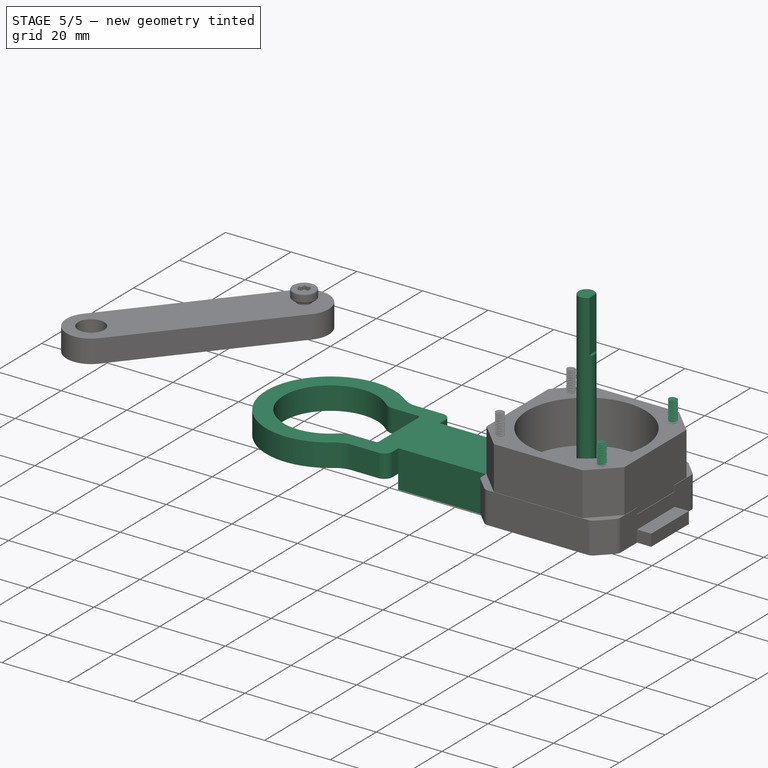
[diagram: stage 5 of 5 — iso view after this stage's code; geometry added in this stage tinted green]
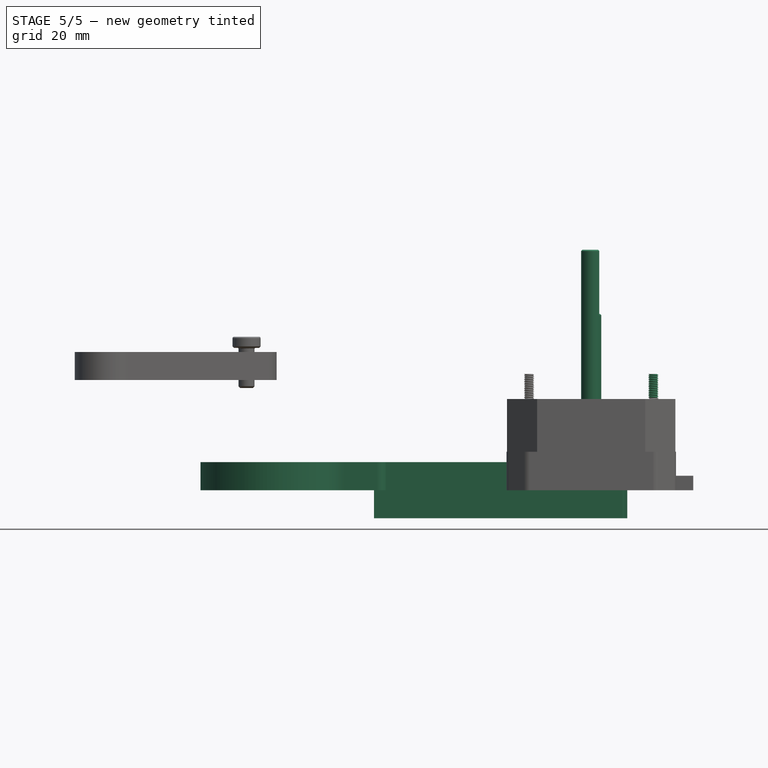
[diagram: stage 5 of 5 — front view after this stage's code; geometry added in this stage tinted green]
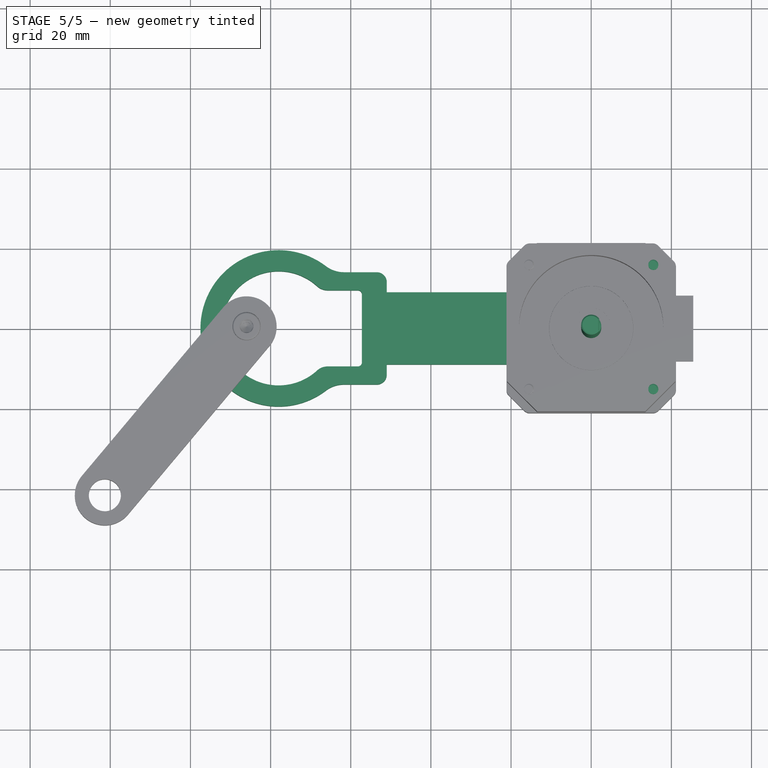
[diagram: stage 5 of 5 — top view after this stage's code; geometry added in this stage tinted green]
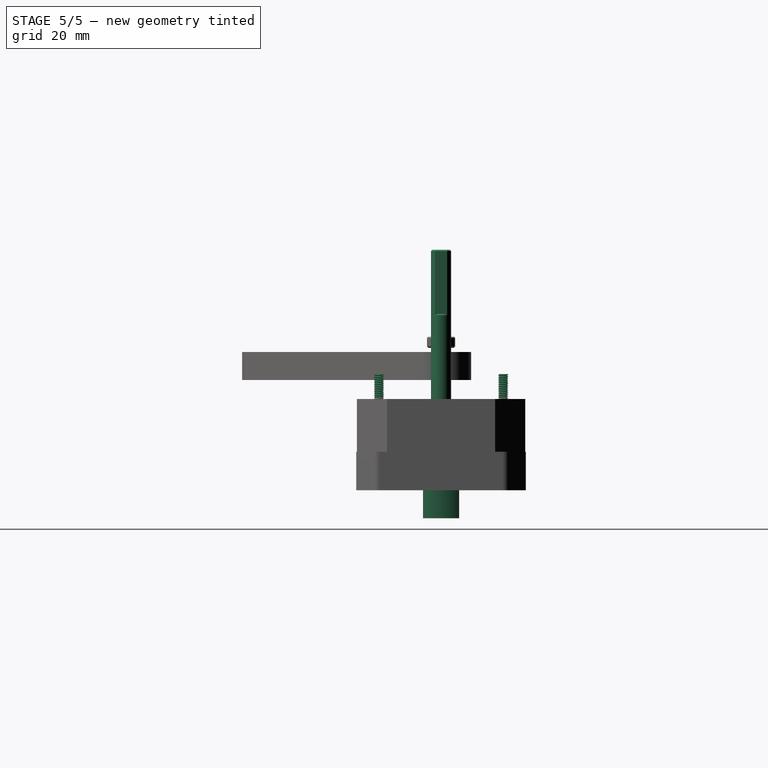
[diagram: stage 5 of 5 — right view after this stage's code; geometry added in this stage tinted green]
FEATURE [Sketcher::SketchObject] Sketch
  FullyConstrained = true
  MapMode = 5
  Support = -> [XY_Plane001]
  expr: Constraints[14] = Spreadsheet.l1_arm_length
  sketch-geometry (20):
    g0: LineSegment StartX=-51 StartY=9 StartZ=0 EndX=0 EndY=9 EndZ=0
    g1: LineSegment StartX=-51 StartY=-9 StartZ=0 EndX=0 EndY=-9 EndZ=0
    g2: ArcOfCircle CenterX=0 CenterY=0 CenterZ=0 NormalX=0 NormalY=0 NormalZ=1 AngleXU=0 Radius=9 StartAngle=4.71239 EndAngle=7.85398
    g3: ArcOfCircle CenterX=-78 CenterY=0 CenterZ=0 NormalX=0 NormalY=0 NormalZ=1 AngleXU=0 Radius=19.5 StartAngle=0.921148 EndAngle=5.36204
    g4: LineSegment StartX=-65.7194 StartY=9.5 StartZ=0 EndX=-58.2194 EndY=9.5 EndZ=0
    g5: LineSegment StartX=-57.2194 StartY=8.5 StartZ=0 EndX=-57.2194 EndY=-8.5 EndZ=0
    g6: LineSegment StartX=-58.2194 StartY=-9.5 StartZ=0 EndX=-65.7194 EndY=-9.5 EndZ=0
    g7: ArcOfCircle CenterX=-78 CenterY=0 CenterZ=0 NormalX=0 NormalY=0 NormalZ=1 AngleXU=0 Radius=14.25 StartAngle=0.832663 EndAngle=5.45052
    g8: ArcOfCircle CenterX=-58.2194 CenterY=8.5 CenterZ=0 NormalX=0 NormalY=0 NormalZ=1 AngleXU=0 Radius=1 StartAngle=-7.39e-13 EndAngle=1.5708
    g9: ArcOfCircle CenterX=-58.2194 CenterY=-8.5 CenterZ=0 NormalX=0 NormalY=0 NormalZ=1 AngleXU=0 Radius=1 StartAngle=4.71239 EndAngle=6.28319
    g10: ArcOfCircle CenterX=-65.7194 CenterY=13.5 CenterZ=0 NormalX=0 NormalY=0 NormalZ=1 AngleXU=0 Radius=4 StartAngle=3.97426 EndAngle=4.71239
    g11: ArcOfCircle CenterX=-65.7194 CenterY=-13.5 CenterZ=0 NormalX=0 NormalY=0 NormalZ=1 AngleXU=0 Radius=4 StartAngle=1.5708 EndAngle=2.30893
    g12: LineSegment StartX=-61.6675 StartY=14 StartZ=0 EndX=-53.5 EndY=14 EndZ=0
    g13: LineSegment StartX=-51 StartY=11.5 StartZ=0 EndX=-51 EndY=9 EndZ=0
    g14: LineSegment StartX=-61.6675 StartY=-14 StartZ=0 EndX=-53.5 EndY=-14 EndZ=0
    g15: LineSegment StartX=-51 StartY=-11.5 StartZ=0 EndX=-51 EndY=-9 EndZ=0
    g16: ArcOfCircle CenterX=-53.5 CenterY=11.5 CenterZ=0 NormalX=0 NormalY=0 NormalZ=1 AngleXU=0 Radius=2.5 StartAngle=-9e-16 EndAngle=1.5708
    g17: ArcOfCircle CenterX=-53.5 CenterY=-11.5 CenterZ=0 NormalX=0 NormalY=0 NormalZ=1 AngleXU=0 Radius=2.5 StartAngle=4.71239 EndAngle=6.28319
    g18: ArcOfCircle CenterX=-61.6675 CenterY=21.5 CenterZ=0 NormalX=0 NormalY=0 NormalZ=1 AngleXU=0 Radius=7.5 StartAngle=4.06274 EndAngle=4.71239
    g19: ArcOfCircle CenterX=-61.6675 CenterY=-21.5 CenterZ=0 NormalX=0 NormalY=0 NormalZ=1 AngleXU=0 Radius=7.5 StartAngle=1.5708 EndAngle=2.22045
  constraints (52):
    c: Horizontal(g0)
    c: Horizontal(g1)
    c: Tangent(g2,g0) = 1.5708
    c: Tangent(g2,g1) = -1.5708
    c: Equal(g1,g0)
    c: PointOnObject(g2,g-1)
    c: DistanceX(g0,g0) = 51
    c: Diameter(g2) = 18
    c: Diameter(g3) = 39
    c: PointOnObject(g2,g-2)
    c: Horizontal(g4)
    c: Vertical(g5)
    c: Horizontal(g6)
    c: PointOnObject(g7,g-1)
    c: DistanceX(g7,g-1) = 78
    c: Equal(g6,g4)
    c: Tangent(g4,g8) = 1.5708
    c: Tangent(g5,g8) = 1.5708
    c: Tangent(g6,g9) = 1.5708
    c: Tangent(g5,g9) = 1.5708
    c: Diameter(g9) = 2
    c: Diameter(g8) = 2
    c: Diameter(g7) = 28.5
    c: Tangent(g4,g10) = -1.5708
    c: Tangent(g7,g10) = 1.5708
    c: Tangent(g6,g11) = -1.5708
    c: Tangent(g7,g11) = 1.5708
    c: Diameter(g11) = 8
    c: Diameter(g10) = 8
    c: DistanceY(g5,g5) = 17
    c: DistanceX(g4,g4) = 7.5
    c: Coincident(g3,g7)
    c: Horizontal(g12)
    c: Coincident(g13,g0)
    c: Vertical(g13)
    c: Horizontal(g14)
    c: Coincident(g15,g1)
    c: Vertical(g15)
    c: Equal(g14,g12)
    c: Tangent(g13,g16) = 1.5708
    c: Tangent(g12,g16) = 1.5708
    c: Tangent(g15,g17) = -1.5708
    c: Tangent(g14,g17) = -1.5708
    c: Equal(g17,g16)
    c: Tangent(g12,g18) = -1.5708
    c: Tangent(g3,g18) = 1.5708
    c: Tangent(g14,g19) = 1.5708
    c: Tangent(g3,g19) = 1.5708
    c: Equal(g18,g19)
    c: Diameter(g18) = 15
    c: Diameter(g16) = 5
    c: DistanceY(g15,g15) = 2.5
FEATURE [PartDesign::Pad] Pad
  Direction = (1,1,1)
  Length = 7
  Length2 = 100
  Profile = -> Sketch
  Type = 0
  expr: Length = Spreadsheet.l1_thicc
FEATURE [Sketcher::SketchObject] Sketch001
  FullyConstrained = true
  MapMode = 5
  Support = -> [XY_Plane001]
  sketch-geometry (5):
    g0: LineSegment StartX=-54.2058 StartY=4.5 StartZ=0 EndX=-54.2058 EndY=-4.5 EndZ=0
    g1: LineSegment StartX=-54.2058 StartY=-4.5 StartZ=0 EndX=7.79423 EndY=-4.5 EndZ=0
    g2: LineSegment StartX=-54.2058 StartY=4.5 StartZ=0 EndX=7.79423 EndY=4.5 EndZ=0
    g3: ArcOfCircle CenterX=0 CenterY=0 CenterZ=0 NormalX=0 NormalY=0 NormalZ=1 AngleXU=0 Radius=9 StartAngle=5.75959 EndAngle=6.80678
    g4: GeomPoint X=-54.2058 Y=0 Z=0
  constraints (13):
    c: Vertical(g0)
    c: Coincident(g1,g0)
    c: Horizontal(g1)
    c: Coincident(g2,g0)
    c: Horizontal(g2)
    c: Coincident(g3,g-1)
    c: Coincident(g3,g2)
    c: Coincident(g3,g1)
    c: Symmetric(g0,g0,g4)
    c: PointOnObject(g4,g-1)
    c: Diameter(g3) = 18
    c: DistanceY(g0,g0) = 9
    c: DistanceX(g2,g2) = 62
FEATURE [PartDesign::Pad] Pad001
  BaseFeature = -> Pad
  Direction = (1,1,1)
  Length = 7
  Length2 = 100
  Profile = -> Sketch001
  Reversed = true
  Type = 0
FEATURE [Sketcher::SketchObject] Sketch002
  FullyConstrained = true
  MapMode = 5
  Support = -> [XY_Plane001]
  sketch-geometry (3):
    g0: LineSegment StartX=-2 StartY=1.5 StartZ=0 EndX=-2 EndY=-1.5 EndZ=0
    g1: GeomPoint X=-2 Y=0 Z=0
    g2: ArcOfCircle CenterX=0 CenterY=0 CenterZ=0 NormalX=0 NormalY=0 NormalZ=1 AngleXU=0 Radius=2.5 StartAngle=3.78509 EndAngle=8.78128
  constraints (7):
    c: Vertical(g0)
    c: Symmetric(g0,g0,g1)
    c: Coincident(g2,g-1)
    c: Coincident(g2,g0)
    c: Coincident(g2,g0)
    c: DistanceY(g0,g0) = 3
    c: Diameter(g2) = 5
FEATURE [Part::Feature] Compound001  label="28BYJ-48 final"
  Placement = pos=(-78,1.73e-14,-11) rot=(0,0,1;1.5708rad)
  shape: bbox 31 x 42 x 29 mm, 57 faces, 3 solids (baked)
FEATURE [App::Part] Part001  label="28BYJ-48"
  Group = -> [Compound001]
  Origin = -> Origin003
FEATURE [PartDesign::Pocket] Pocket
  BaseFeature = -> Pad001
  Length = 5
  Length2 = 100
  Midplane = true
  Profile = -> Sketch002
  Type = 1
FEATURE [Sketcher::SketchObject] Sketch010
  FullyConstrained = false
  MapMode = 5
  Support = -> [XY_Plane008]
  sketch-geometry (1):
    g0: Circle CenterX=0 CenterY=0 CenterZ=0 NormalX=0 NormalY=0 NormalZ=1 AngleXU=0 Radius=2.5
  constraints (2):
    c: Coincident(g0,g-1)
    c: Radius(g0) = 2.5
FEATURE [PartDesign::Pad] Pad006
  AllowMultiFace = false
  Direction = (1,1,1)
  Length = 60
  Length2 = 100
  Profile = -> Sketch010
  Refine = true
  Type = 0
FEATURE [Sketcher::SketchObject] Sketch011
  FullyConstrained = false
  MapMode = 5
  Placement = pos=(0,0,60) rot=(0,0,1;0rad)
  Support = -> [Pad006]
  sketch-geometry (4):
    g0: LineSegment StartX=2 StartY=2 StartZ=0 EndX=6 EndY=2 EndZ=0
    g1: LineSegment StartX=6 StartY=2 StartZ=0 EndX=6 EndY=-2 EndZ=0
    g2: LineSegment StartX=6 StartY=-2 StartZ=0 EndX=2 EndY=-2 EndZ=0
    g3: LineSegment StartX=2 StartY=-2 StartZ=0 EndX=2 EndY=2 EndZ=0
  constraints (11):
    c: Coincident(g0,g1)
    c: Coincident(g1,g2)
    c: Coincident(g2,g3)
    c: Coincident(g3,g0)
    c: Horizontal(g0)
    c: Horizontal(g2)
    c: Vertical(g1)
    c: Symmetric(g2,g0,g-1)
    c: DistanceX(g-1,g0) = 2
    c: Equal(g0,g3)
    c: DistanceX(g0,g0) = 4
FEATURE [PartDesign::Pocket] Pocket005
  AllowMultiFace = false
  BaseFeature = -> Pad006
  Length = 16
  Length2 = 100
  Profile = -> Sketch011
  Refine = true
  Type = 0
FEATURE [PartDesign::Chamfer] Chamfer003
  Angle = 45
  Base = -> Pocket005 [Edge3,Edge5,Edge9]
  BaseFeature = -> Pocket005
  ChamferType = 0
  FlipDirection = false
  Size = 0.3
  Size2 = 1
  SupportTransform = false
FEATURE [Part::FeaturePython] Screw  label="M2.5x25-Screw"  # Fasteners workbench fastener (typed FeaturePython)
  Placement = pos=(15.5,15.5,4) rot=(0,1,0;3.14159rad)
  diameter = 3
  invert = true
  length = 10
  matchOuter = true
  offset = 1
  thread = true
  type = 16
FEATURE [Part::FeaturePython] Screw002  label="M2.5x25-Screw005"  # Fasteners workbench fastener (typed FeaturePython)
  Placement = pos=(15.5,-15.5,4) rot=(0,1,0;3.14159rad)
  diameter = 3
  invert = true
  length = 10
  matchOuter = true
  offset = 1
  thread = true
  type = 16
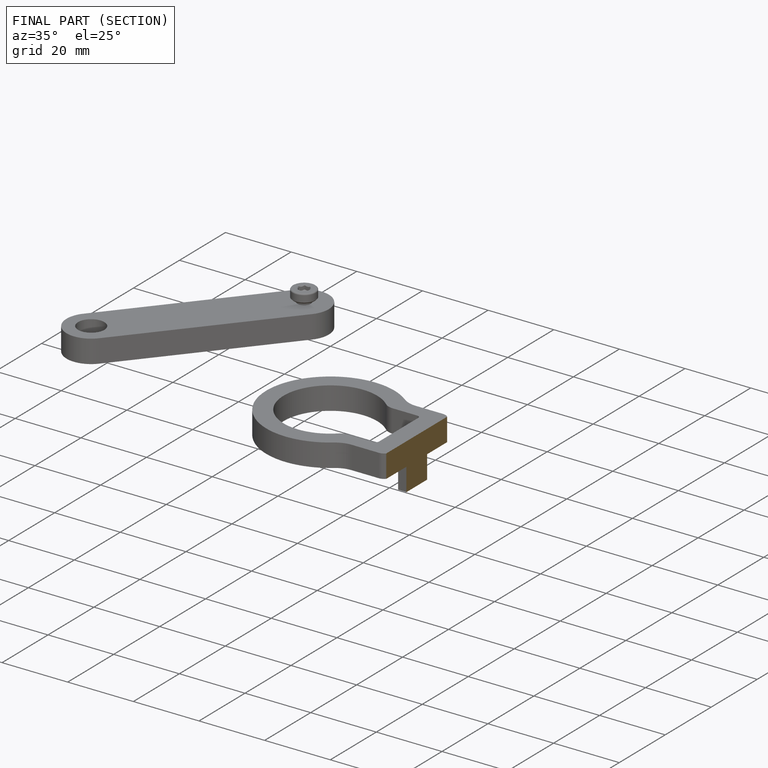
[diagram: finished part — half-section view (interior)]
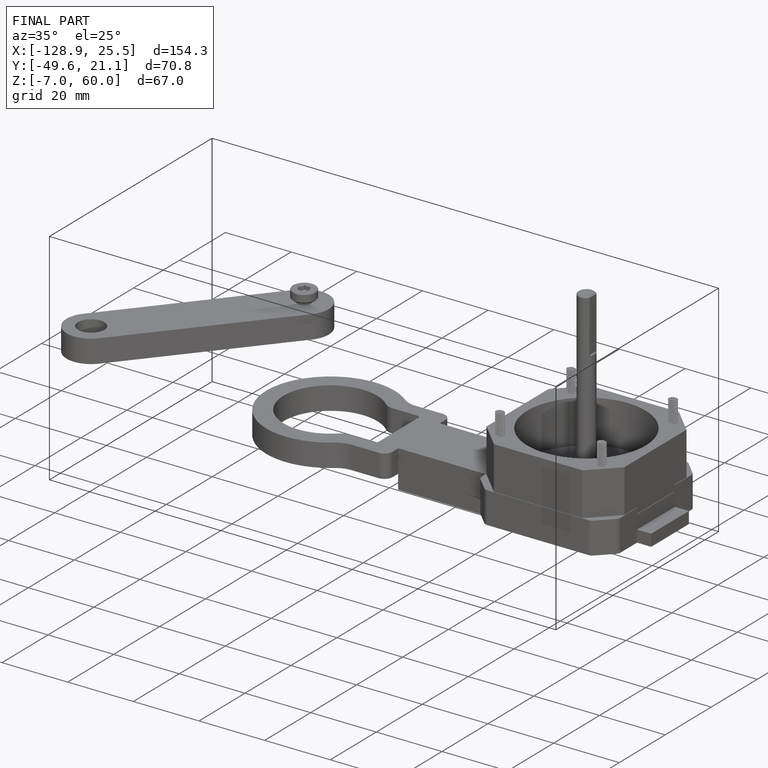
[diagram: finished part — iso view with bounding-box wireframe]
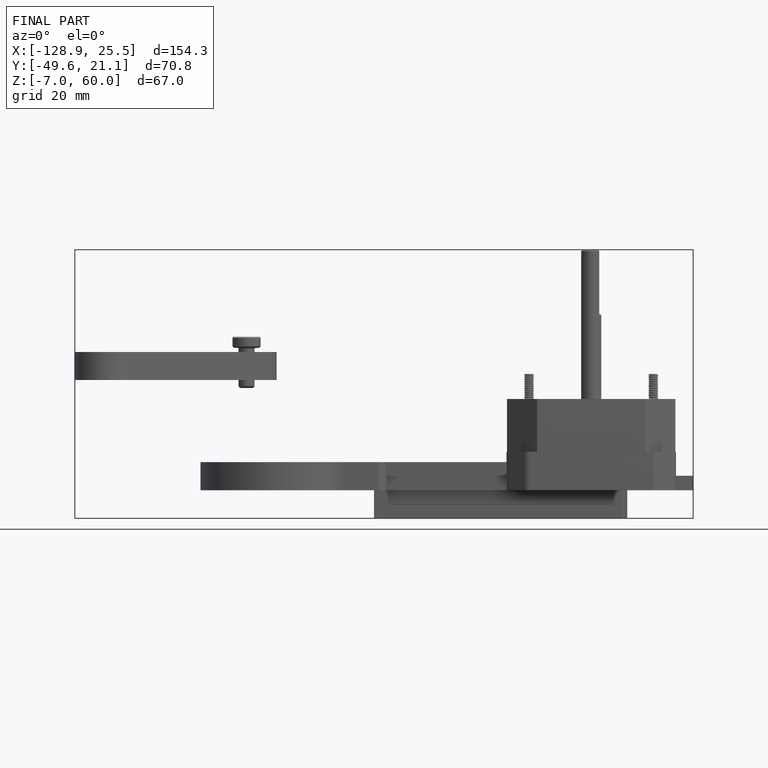
[diagram: finished part — front view with bounding-box wireframe]
